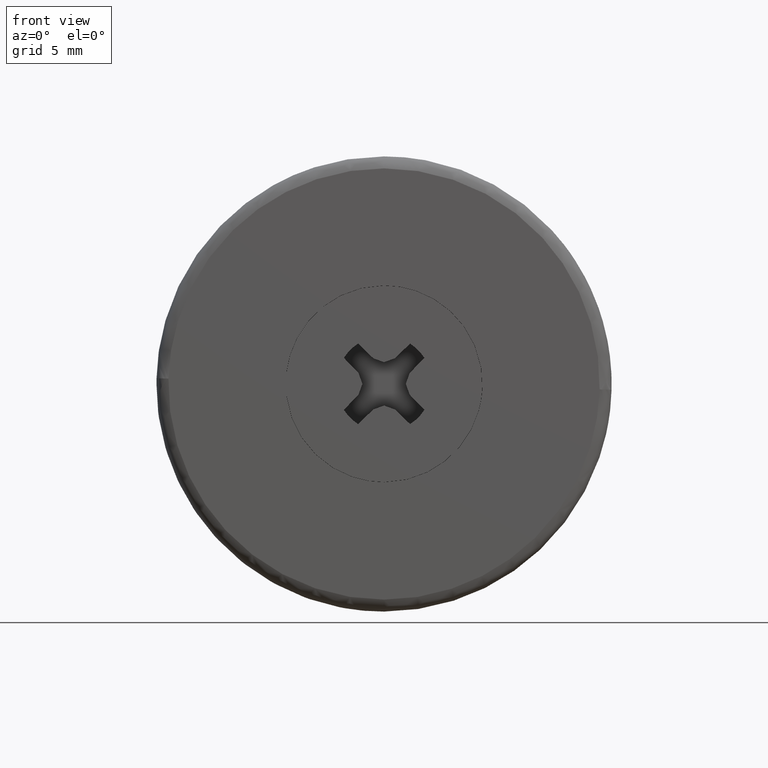
[diagram: clean part render]
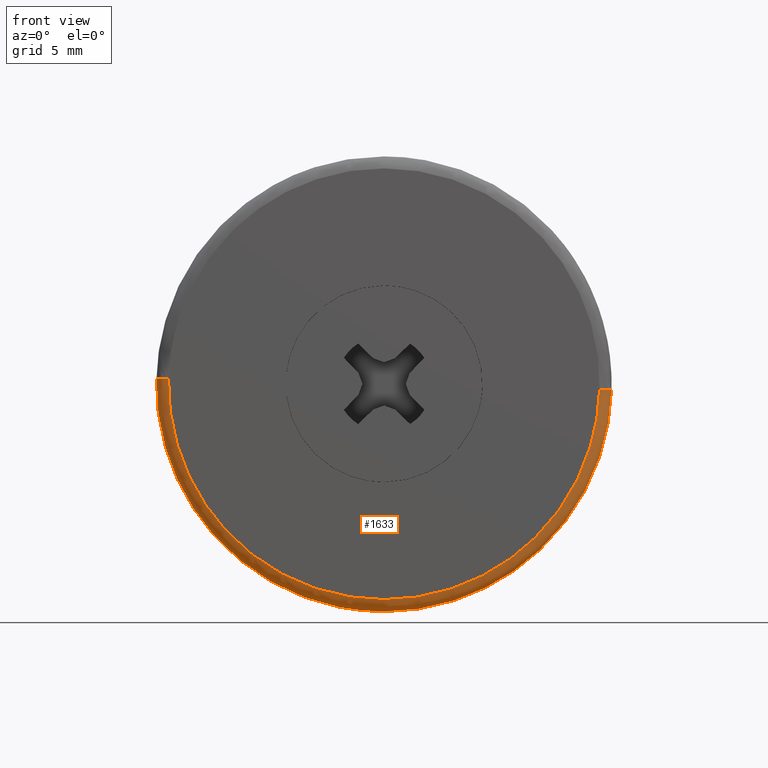
[diagram: same view with one face highlighted and labeled with its STEP entity id]
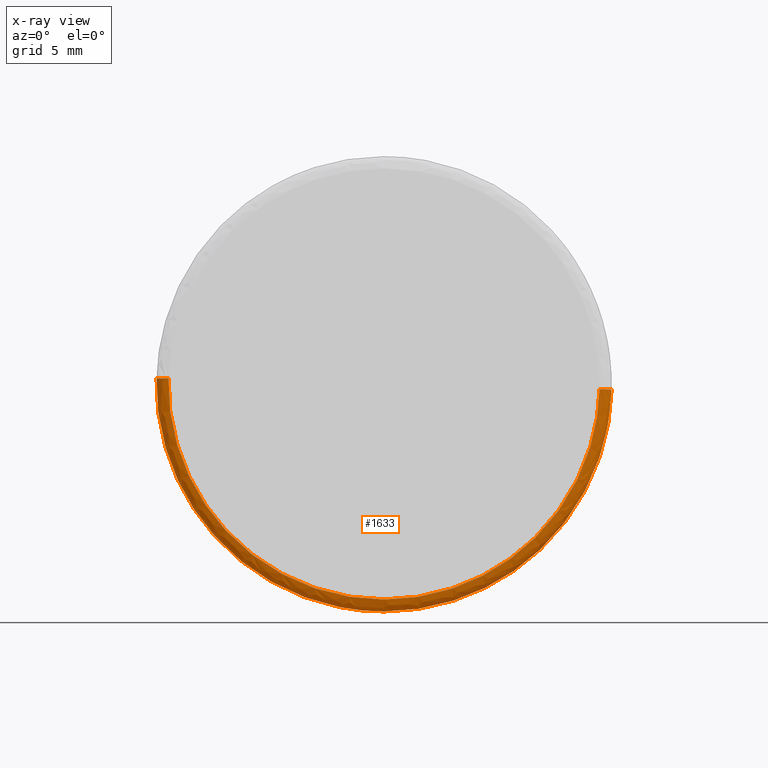
[diagram: x-ray of the same camera — body ghosted, the highlighted face saturated]
A machine part, front view. The second image highlights one B-rep face of the part: STEP entity #1633.
The next image is the same camera in x-ray: the body ghosted, the highlighted face saturated — about 0% of this face is hidden behind the body in this view.
In plain terms, the highlighted face is a freeform B-spline surface patch.
Its self-contained STEP definition (entity closure, byte-faithful):
#1330=CARTESIAN_POINT('',(-9.496999798191341,0.499999999859289,0.238735906711980));
#1331=VERTEX_POINT('',#1330);
#1421=CARTESIAN_POINT('',(9.496999798191341,0.499999999859289,-0.238735906711978));
#1422=VERTEX_POINT('',#1421);
#1438=CARTESIAN_POINT('',(0.0,0.500000000000000,-9.500000000000000));
#1439=VERTEX_POINT('',#1438);
#1440=CARTESIAN_POINT('',(0.0,0.500000000000000,-9.500000000000000));
#1441=CARTESIAN_POINT('',(9.264189823715638,0.500000000000000,-9.499999999999998));
#1442=CARTESIAN_POINT('',(9.496999798191341,0.499999999859289,-0.238735906711978));
#1450=(BOUNDED_CURVE()B_SPLINE_CURVE(2,(#1440,#1441,#1442),.UNSPECIFIED.,.F.,.U.)B_SPLINE_CURVE_WITH_KNOTS((3,3),(0.0,0.245579891769798),.UNSPECIFIED.)CURVE()GEOMETRIC_REPRESENTATION_ITEM()RATIONAL_B_SPLINE_CURVE((1.0,0.712285260094739,0.989826157681554))REPRESENTATION_ITEM(''));
#1451=EDGE_CURVE('',#1439,#1422,#1450,.T.);
#1453=CARTESIAN_POINT('',(-9.496999798191341,0.499999999859289,0.238735906711980));
#1454=CARTESIAN_POINT('',(-9.500000000000000,0.500000000000000,0.119386805172380));
#1455=CARTESIAN_POINT('',(-9.500000000000000,0.500000000000000,-1.552808E-016));
#1456=CARTESIAN_POINT('',(-9.500000000000000,0.500000000000000,-9.500000000000000));
#1457=CARTESIAN_POINT('',(0.0,0.500000000000000,-9.500000000000000));
#1465=(BOUNDED_CURVE()B_SPLINE_CURVE(2,(#1453,#1454,#1455,#1456,#1457),.UNSPECIFIED.,.F.,.U.)B_SPLINE_CURVE_WITH_KNOTS((3,2,3),(0.745579891769797,0.750000000000000,1.0),.UNSPECIFIED.)CURVE()GEOMETRIC_REPRESENTATION_ITEM()RATIONAL_B_SPLINE_CURVE((0.989826157681553,0.994821521091809,1.0,0.707106781186548,1.0))REPRESENTATION_ITEM(''));
#1466=EDGE_CURVE('',#1331,#1439,#1465,.T.);
#1546=CARTESIAN_POINT('',(-9.495783334874179,0.534862112566139,0.238705327215110));
#1547=CARTESIAN_POINT('',(-9.734488662089293,0.534862112566139,-9.257078007659066));
#1548=CARTESIAN_POINT('',(-0.238705327215113,0.534862112566139,-9.495783334874179));
#1549=CARTESIAN_POINT('',(9.257078007659066,0.534862112566139,-9.734488662089293));
#1550=CARTESIAN_POINT('',(9.495783334874179,0.534862112566139,-0.238705327215113));
#1551=CARTESIAN_POINT('',(-9.535857199544944,-0.038668334935734,0.239712705399896));
#1552=CARTESIAN_POINT('',(-9.775569904944840,-0.038668334935734,-9.296144494145041));
#1553=CARTESIAN_POINT('',(-0.239712705399899,-0.038668334935734,-9.535857199544942));
#1554=CARTESIAN_POINT('',(9.296144494145041,-0.038668334935734,-9.775569904944840));
#1555=CARTESIAN_POINT('',(9.535857199544942,-0.038668334935734,-0.239712705399900));
#1556=CARTESIAN_POINT('',(-8.962492943248043,0.001203854216562,0.225299455056436));
#1557=CARTESIAN_POINT('',(-9.187792398304476,0.001203854216562,-8.737193488191602));
#1558=CARTESIAN_POINT('',(-0.225299455056438,0.001203854216562,-8.962492943248043));
#1559=CARTESIAN_POINT('',(8.737193488191602,0.001203854216562,-9.187792398304479));
#1560=CARTESIAN_POINT('',(8.962492943248043,0.001203854216562,-0.225299455056439));
#1568=(BOUNDED_SURFACE()B_SPLINE_SURFACE(2,2,((#1546,#1551,#1556),(#1547,#1552,#1557),(#1548,#1553,#1558),(#1549,#1554,#1559),(#1550,#1555,#1560)),.UNSPECIFIED.,.F.,.F.,.U.)B_SPLINE_SURFACE_WITH_KNOTS((3,2,3),(3,3),(0.0,15.738099231042860,31.476198462085730),(0.0,0.911185700394119),.UNSPECIFIED.)GEOMETRIC_REPRESENTATION_ITEM()RATIONAL_B_SPLINE_SURFACE(((0.910892958135503,0.599412749565811,0.915966979117423),(0.644098587632688,0.423848819947659,0.647686462276886),(0.910892958135503,0.599412749565811,0.915966979117423),(0.644098587632688,0.423848819947659,0.647686462276886),(0.910892958135503,0.599412749565811,0.915966979117423)))REPRESENTATION_ITEM('')SURFACE());
#1569=CARTESIAN_POINT('',(-8.997157704102083,-7.545715E-016,0.226170859018032));
#1570=VERTEX_POINT('',#1569);
#1571=CARTESIAN_POINT('',(0.0,-1.665335E-015,-9.0));
#1572=VERTEX_POINT('',#1571);
#1573=CARTESIAN_POINT('',(-8.997157704102083,-7.545715E-016,0.226170859018032));
#1574=CARTESIAN_POINT('',(-9.0,-1.665335E-015,0.113103289124523));
#1575=CARTESIAN_POINT('',(-9.0,-1.665335E-015,-1.552808E-016));
#1576=CARTESIAN_POINT('',(-9.0,-1.665335E-015,-9.0));
#1577=CARTESIAN_POINT('',(0.0,-1.665335E-015,-9.0));
#1585=(BOUNDED_CURVE()B_SPLINE_CURVE(2,(#1573,#1574,#1575,#1576,#1577),.UNSPECIFIED.,.F.,.U.)B_SPLINE_CURVE_WITH_KNOTS((3,2,3),(0.745579891769259,0.750000000000000,1.0),.UNSPECIFIED.)CURVE()GEOMETRIC_REPRESENTATION_ITEM()RATIONAL_B_SPLINE_CURVE((0.989826157680336,0.994821521091178,1.0,0.707106781186547,1.0))REPRESENTATION_ITEM(''));
#1586=EDGE_CURVE('',#1570,#1572,#1585,.T.);
#1587=ORIENTED_EDGE('',*,*,#1586,.F.);
#1588=CARTESIAN_POINT('',(-9.496999798191341,0.499999999859289,0.238735906711980));
#1589=CARTESIAN_POINT('',(-9.496999797910013,1.105827E-009,0.238735906704634));
#1590=CARTESIAN_POINT('',(-8.997157704102083,-7.545715E-016,0.226170859018032));
#1598=(BOUNDED_CURVE()B_SPLINE_CURVE(2,(#1588,#1589,#1590),.UNSPECIFIED.,.F.,.U.)B_SPLINE_CURVE_WITH_KNOTS((3,3),(-1.723441281405269,-0.263586881216809),.UNSPECIFIED.)CURVE()GEOMETRIC_REPRESENTATION_ITEM()RATIONAL_B_SPLINE_CURVE((0.883897566934423,0.626638727744861,0.888510408241346))REPRESENTATION_ITEM(''));
#1599=EDGE_CURVE('',#1331,#1570,#1598,.T.);
#1600=ORIENTED_EDGE('',*,*,#1599,.F.);
#1601=ORIENTED_EDGE('',*,*,#1466,.T.);
#1602=ORIENTED_EDGE('',*,*,#1451,.T.);
#1603=CARTESIAN_POINT('',(8.997157704102083,-7.389523E-016,-0.226170859018029));
#1604=VERTEX_POINT('',#1603);
#1605=CARTESIAN_POINT('',(9.496999798191341,0.499999999859289,-0.238735906711978));
#1606=CARTESIAN_POINT('',(9.496999797910013,1.105827E-009,-0.238735906704633));
#1607=CARTESIAN_POINT('',(8.997157704102083,-7.389523E-016,-0.226170859018029));
#1615=(BOUNDED_CURVE()B_SPLINE_CURVE(2,(#1605,#1606,#1607),.UNSPECIFIED.,.F.,.U.)B_SPLINE_CURVE_WITH_KNOTS((3,3),(-1.723441281405269,-0.263586881216810),.UNSPECIFIED.)CURVE()GEOMETRIC_REPRESENTATION_ITEM()RATIONAL_B_SPLINE_CURVE((0.883897566934423,0.626638727744861,0.888510408241346))REPRESENTATION_ITEM(''));
#1616=EDGE_CURVE('',#1422,#1604,#1615,.T.);
#1617=ORIENTED_EDGE('',*,*,#1616,.T.);
#1618=CARTESIAN_POINT('',(0.0,-1.665335E-015,-9.0));
#1619=CARTESIAN_POINT('',(8.776600885598329,-1.665335E-015,-9.000000000000002));
#1620=CARTESIAN_POINT('',(8.997157704102083,-7.389523E-016,-0.226170859018029));
#1628=(BOUNDED_CURVE()B_SPLINE_CURVE(2,(#1618,#1619,#1620),.UNSPECIFIED.,.F.,.U.)B_SPLINE_CURVE_WITH_KNOTS((3,3),(0.0,0.245579891769259),.UNSPECIFIED.)CURVE()GEOMETRIC_REPRESENTATION_ITEM()RATIONAL_B_SPLINE_CURVE((1.0,0.712285260095370,0.989826157680337))REPRESENTATION_ITEM(''));
#1629=EDGE_CURVE('',#1572,#1604,#1628,.T.);
#1630=ORIENTED_EDGE('',*,*,#1629,.F.);
#1631=EDGE_LOOP('',(#1587,#1600,#1601,#1602,#1617,#1630));
#1632=FACE_OUTER_BOUND('',#1631,.T.);
#1633=ADVANCED_FACE('',(#1632),#1568,.T.);